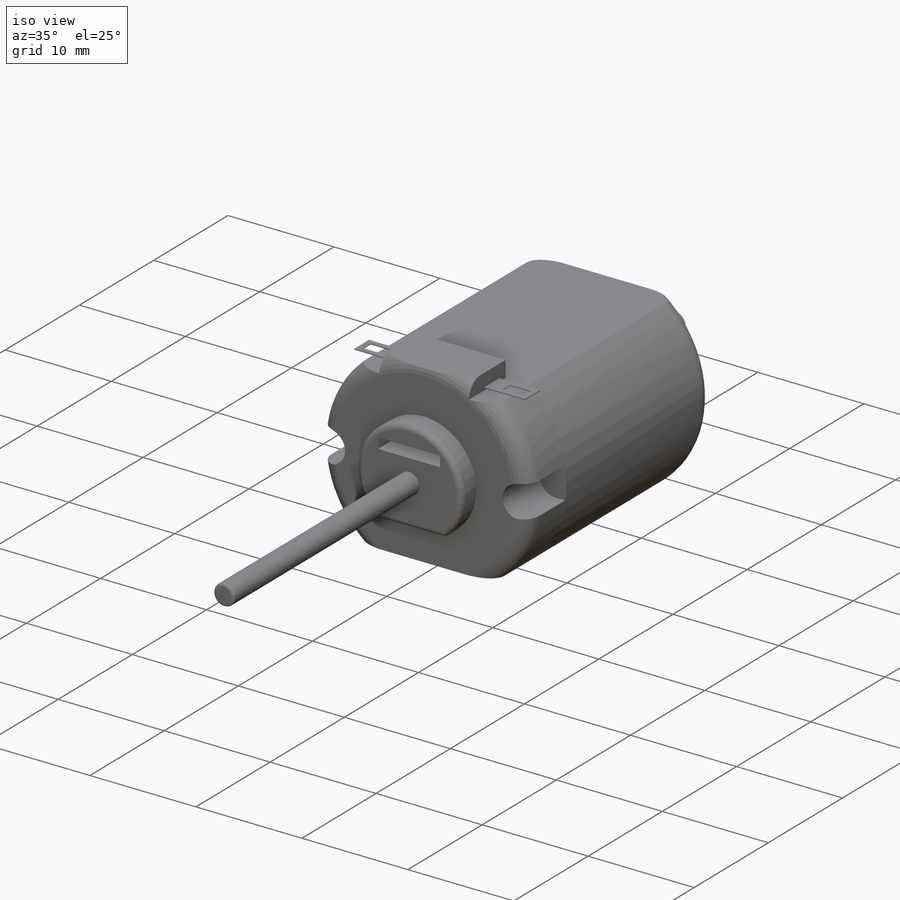
[diagram: iso view]
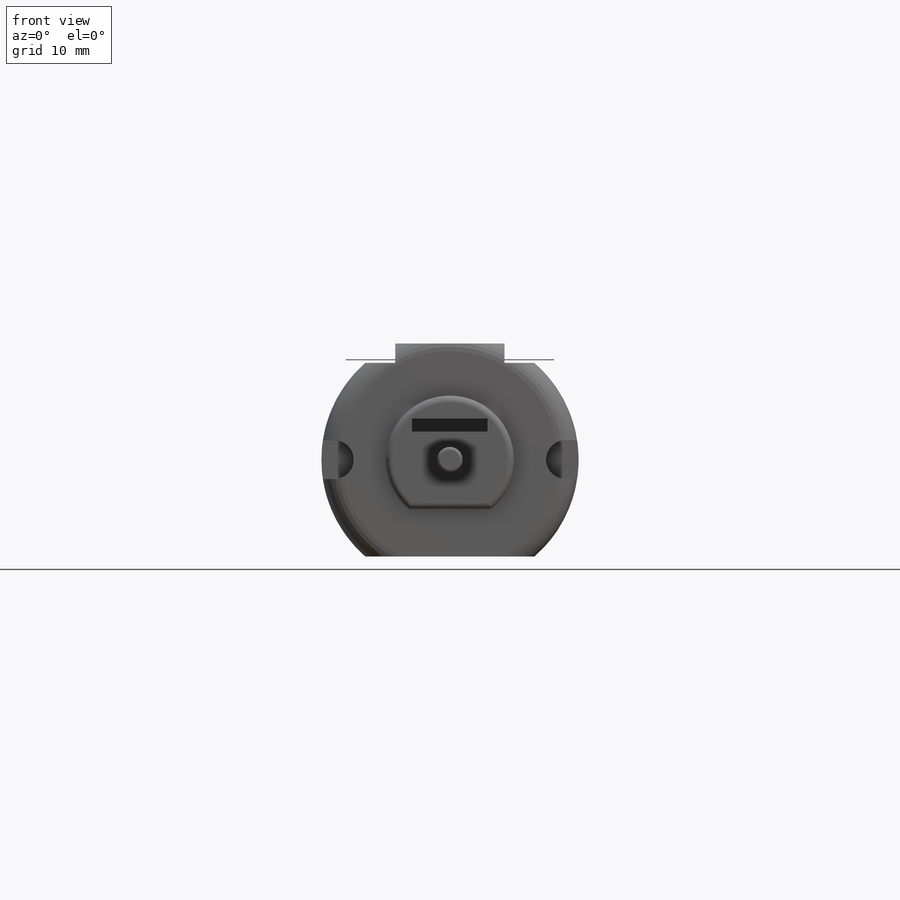
[diagram: front view]
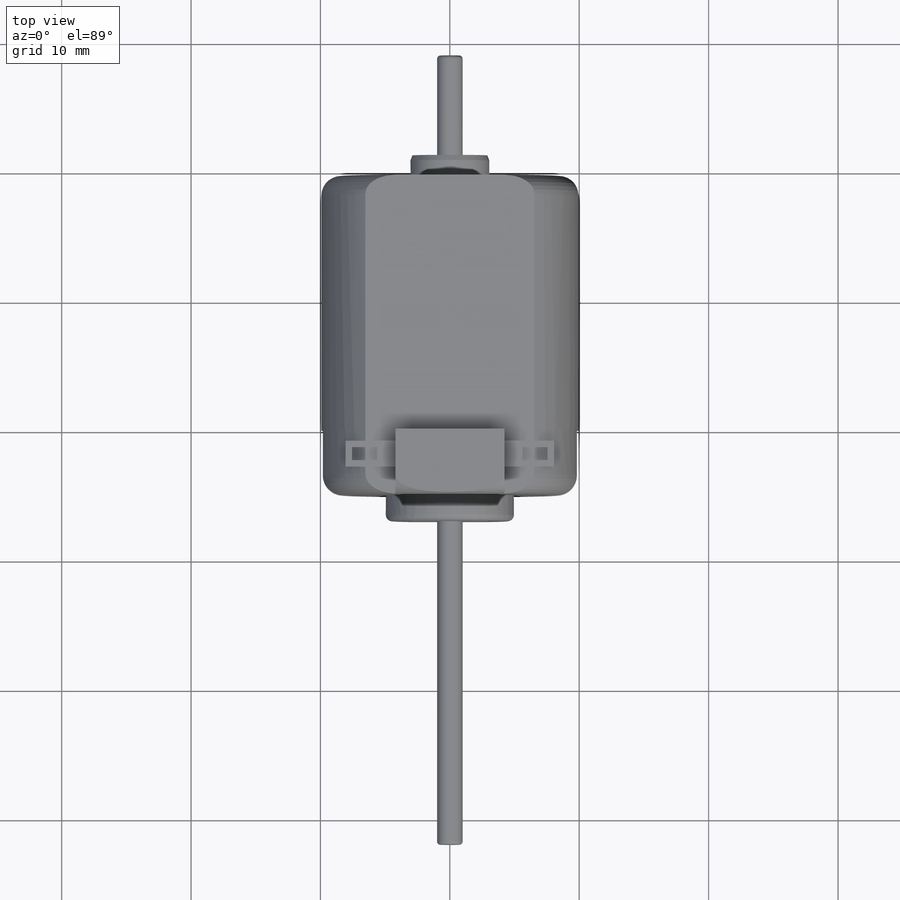
[diagram: top view]
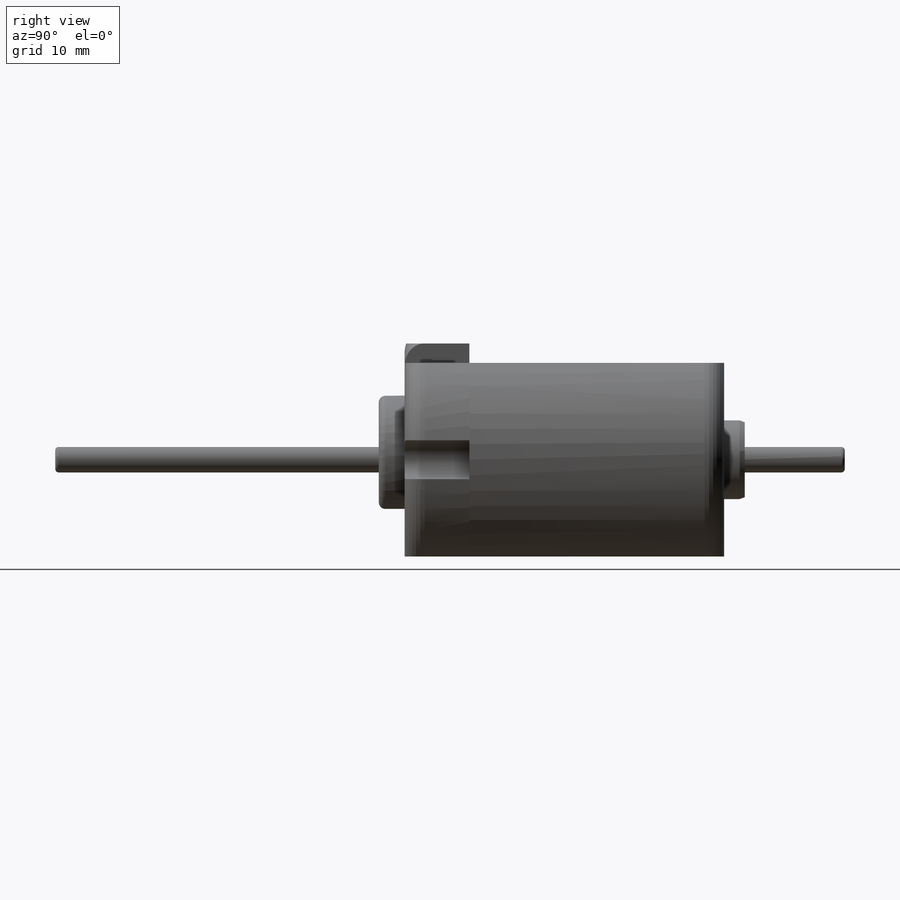
[diagram: right view]
SOLIDWORKS PART (.sldprt)
format: sldprt  version: not decoded by parser v0  size: 668,672 bytes
history: native  units: mm
features: sketch x18, extrude x9, cut_extrude x8, fillet x4, plane x2, material x1, mirror x1, cut_revolve x1, chamfer x1 (+12 scaffold rows collapsed)
feature tree (57):
  scaffold x12  (default folders/planes/origin — collapsed)
  material  "Material <not specified>"
  sketch  "Sketch1"  dims[c1.D1=1.97mm c1.D2=9.88mm c1.D3=9.93mm c2.D1=14.97mm c2.D2=7.485mm c2.D3=14.97mm c2.D4=7.485mm c2.D5=7.485mm c2.D6=~13.050621mm c3.D1=~13.050621mm c3.D2=~13.050621mm]
  extrude  "Extrude1"  Depth=5mm
  sketch  "Sketch2"  dims[D1=8.88mm D2=6.35mm D3=5.92mm D4=1.0mm D5=5.6mm D6=2.96mm]
  extrude  "Extrude2"  Depth=2mm
  sketch  "Sketch4"  dims[c1.D1=5.842mm c1.D2=1.0mm c1.D3=5.6mm c1.D4=2.921mm c2.D3=~2.162058mm c2.D5=~2.962817mm c2.D4=2.921mm c3.D5=2.921mm]
  sketch  "Sketch5"  dims[D1=1.97mm]
  extrude  "Extrude3"  Depth=25mm
  fillet  "Fillet1"  Radius=0.25mm
  fillet  "Fillet2"  Radius=0.5mm
  plane  "Plane1"
  sketch  "Sketch6"  dims[c1.D1=3.0mm c1.D2=3.0mm c1.D3=1.47mm c2.D1=2.5mm c2.D2=8.93mm c2.D3=8.93mm c3.D1=~2.532584mm]
  cut_extrude  "Cut-Extrude2"  [1 undecoded]
  mirror  "Mirror1"
  sketch  "Sketch7"  dims[D1=8.44mm D2=4.22mm]
  extrude  "Extrude4"  Depth=1.5mm
  plane  "Plane2"
  sketch  "Sketch8"  dims[c1.D1=~136.61649deg c2.D1=~2.491364mm c3.D1=45.0deg]
  cut_revolve  "Cut-Revolve1"  Angle=360deg
  sketch  "Sketch9"  dims[D1=2.0mm D2=0.08mm D3=0.2mm D4=0.9mm]
  extrude  "Extrude5"  Depth=3.83mm
  sketch  "Sketch10"  dims[c1.D1=0.93mm c1.D2=2.0mm c2.D1=1.93mm c2.D2=0.95mm c2.D3=0.475mm c2.D4=0.5mm c3.D3=0.5mm c3.D4=0.55mm c3.D2=0.5mm c4.D4=0.5mm]
  cut_extrude  "Cut-Extrude4"  [1 undecoded]
  sketch  "Sketch21"  dims[D1=0.9mm D2=2.0mm D3=0.08mm D4=0.2mm]
  extrude  "Extrude6"  Depth=3.83mm
  sketch  "Sketch22"  dims[D1=1.93mm D2=0.5mm D3=0.5mm D4=0.5mm]
  cut_extrude  "Cut-Extrude5"  Depth=0.09mm
  sketch  "Sketch23"
  extrude  "Extrude7"  Depth=19.685mm
  fillet  "Fillet6"  Radius=1.5mm
  sketch  "Sketch26"  dims[D1=6.096mm]
  extrude  "Extrude9"  Depth=1.6002mm
  sketch  "Sketch27"  dims[D1=5.08mm]
  cut_extrude  "Cut-Extrude6"  Depth=0.5334mm
  chamfer  "Chamfer1"  Distance=0.4mm Angle=20deg
  sketch  "Sketch29"  dims[D1=1.97mm]
  extrude  "Extrude10"  Depth=8.255mm
  fillet  "Fillet7"  Radius=0.25mm
  sketch  "Sketch30"  dims[D1=1.4605mm D2=2.286mm]
  cut_extrude  "Cut-Extrude7"  Depth=8.255mm
  cut_extrude  "Cut-Extrude9"  Depth=5mm
  sketch  "Sketch31"
  cut_extrude  "Cut-Extrude10"  [1 undecoded]
  sketch  "Sketch32"
  cut_extrude  "Cut-Extrude11"  [1 undecoded]
decode coverage: 34 of 42 modeling features carry decoded parameters
note: ~ marks probable driven/reference dimensions
note: 4 parameter values undecoded
summary: no parameter record found for 4 features
note: suppression state not decoded; provenance and decode notes live in map.json
